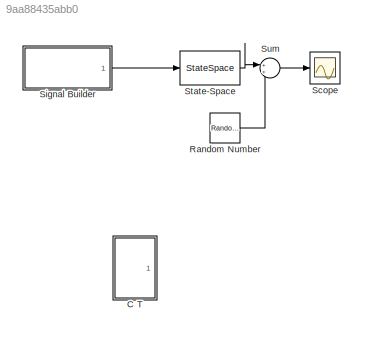
MODEL slx_9aa88435abb0
KIND model
CONFIG AbsTol = auto
CONFIG EnableMultiTasking = off
CONFIG FixedStep = auto
CONFIG MaxStep = auto
CONFIG MinStep = auto
CONFIG RelTol = 1e-3
CONFIG SampleTimeConstraint = Unconstrained
CONFIG Solver = VariableStepAuto
CONFIG SolverName = VariableStepAuto
CONFIG StartTime = 0.0
CONFIG StopTime = 10.0
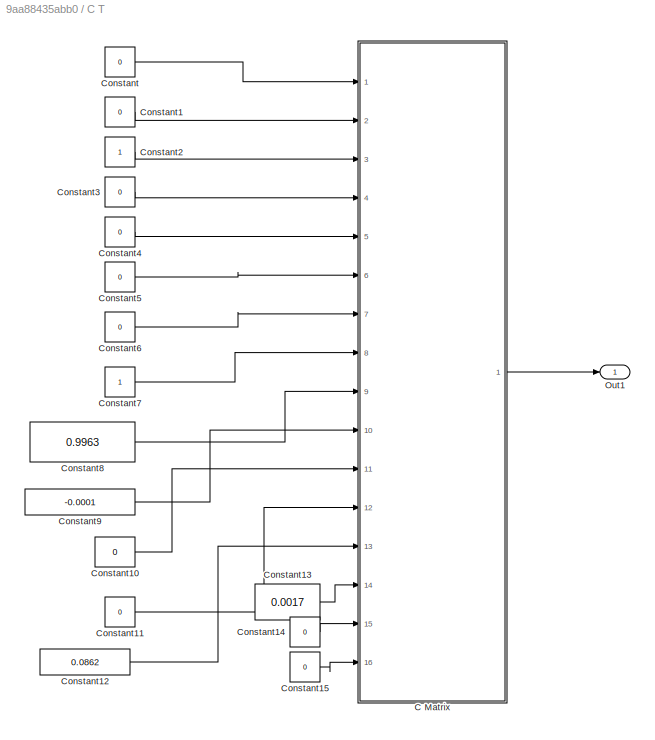
BLOCK [SubSystem] C T
  Ports = [0, 1]
  RequestExecContextInheritance = off
  Variant = off
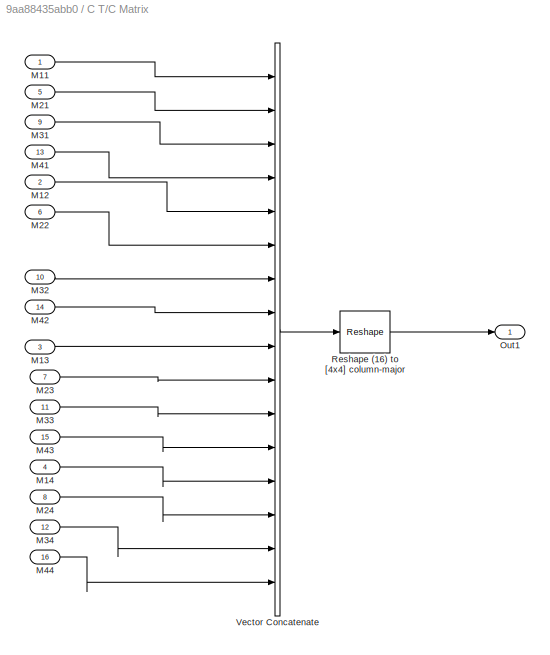
BLOCK [SubSystem] C T/C Matrix
  Ports = [16, 1]
  RequestExecContextInheritance = off
  Variant = off
BLOCK [Inport] C T/C Matrix/M11
  IconDisplay = Port number
  PortDimensions = 1
BLOCK [Inport] C T/C Matrix/M12
  IconDisplay = Port number
  Port = 2
  PortDimensions = 1
BLOCK [Inport] C T/C Matrix/M13
  IconDisplay = Port number
  Port = 3
  PortDimensions = 1
BLOCK [Inport] C T/C Matrix/M14
  IconDisplay = Port number
  Port = 4
  PortDimensions = 1
BLOCK [Inport] C T/C Matrix/M21
  IconDisplay = Port number
  Port = 5
  PortDimensions = 1
BLOCK [Inport] C T/C Matrix/M22
  IconDisplay = Port number
  Port = 6
  PortDimensions = 1
BLOCK [Inport] C T/C Matrix/M23
  IconDisplay = Port number
  Port = 7
  PortDimensions = 1
BLOCK [Inport] C T/C Matrix/M24
  IconDisplay = Port number
  Port = 8
  PortDimensions = 1
BLOCK [Inport] C T/C Matrix/M31
  IconDisplay = Port number
  Port = 9
  PortDimensions = 1
BLOCK [Inport] C T/C Matrix/M32
  IconDisplay = Port number
  Port = 10
  PortDimensions = 1
BLOCK [Inport] C T/C Matrix/M33
  IconDisplay = Port number
  Port = 11
  PortDimensions = 1
BLOCK [Inport] C T/C Matrix/M34
  IconDisplay = Port number
  Port = 12
  PortDimensions = 1
BLOCK [Inport] C T/C Matrix/M41
  IconDisplay = Port number
  Port = 13
  PortDimensions = 1
BLOCK [Inport] C T/C Matrix/M42
  IconDisplay = Port number
  Port = 14
  PortDimensions = 1
BLOCK [Inport] C T/C Matrix/M43
  IconDisplay = Port number
  Port = 15
  PortDimensions = 1
BLOCK [Inport] C T/C Matrix/M44
  IconDisplay = Port number
  Port = 16
  PortDimensions = 1
BLOCK [Outport] C T/C Matrix/Out1
  IconDisplay = Port number
BLOCK [Reshape] C T/C Matrix/Reshape (16) to [4x4] column-major
  OutputDimensionality = Customize
  OutputDimensions = [4,4]
  Ports = [1, 1]
BLOCK [Concatenate] C T/C Matrix/Vector Concatenate
  NumInputs = 16
  Ports = [16, 1]
BLOCK [Constant] C T/Constant
  Value = 0
BLOCK [Constant] C T/Constant1
  Value = 0
BLOCK [Constant] C T/Constant10
  Value = 0
BLOCK [Constant] C T/Constant11
  Value = 0
BLOCK [Constant] C T/Constant12
  Value = 0.0862
BLOCK [Constant] C T/Constant13
  Value = 0.0017
BLOCK [Constant] C T/Constant14
  Value = 0
BLOCK [Constant] C T/Constant15
  Value = 0
BLOCK [Constant] C T/Constant2
BLOCK [Constant] C T/Constant3
  Value = 0
BLOCK [Constant] C T/Constant4
  Value = 0
BLOCK [Constant] C T/Constant5
  Value = 0
BLOCK [Constant] C T/Constant6
  Value = 0
BLOCK [Constant] C T/Constant7
BLOCK [Constant] C T/Constant8
  Value = 0.9963
BLOCK [Constant] C T/Constant9
  Value = -0.0001
BLOCK [Outport] C T/Out1
  IconDisplay = Port number
BLOCK [RandomNumber] Random Number
  SampleTime = 0.01
  Variance = [0.0001, 0.0000001, 0.00002, 0.00002]
BLOCK [Scope] Scope
  NumInputPorts = 1
  Ports = [1]
  ScopeSpecificationString = Simulink.scopes.TimeScopeBlockCfg('CurrentConfiguration', extmgr.ConfigurationSet(extmgr.Configuration('Core','General UI',true),extmgr.Configuration('Core','Source UI',true),extmgr.Configuration('Sources','WiredSimulink',true),extmgr.Configuration('Visuals','Time Domain',true,'SerializedDisplays',{struct('MinYLimReal','-0.10472','MaxYLimReal','0.38544','YLabelReal','','MinYLimMag','0.00000','MaxY...<+1506ch>
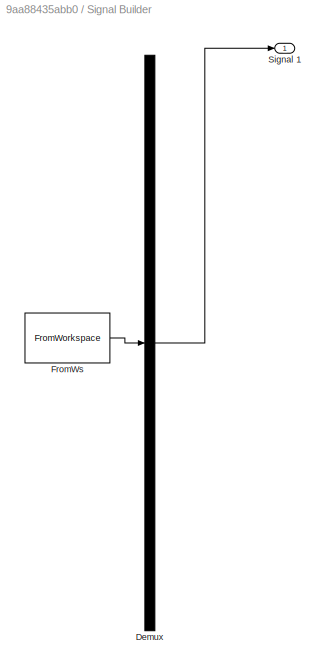
BLOCK [SubSystem] Signal Builder
  ClipboardFcn = sigbuilder_block('clipboard');
  CloseFcn = sigbuilder_block('close');
  ContinueFcn = sigbuilder_block('continue');
  CopyFcn = sigbuilder_block('copy');
  DeleteFcn = sigbuilder_block('delete');
  LoadFcn = sigbuilder_block('load');
  MaskHideContents = on
  ModelCloseFcn = sigbuilder_block('modelClose');
  NameChangeFcn = sigbuilder_block('namechange');
  OpenFcn = sigbuilder_block('open',[300 184.875 550.5 400.125 ]);
  PauseFcn = sigbuilder_block('pause');
  Ports = [0, 1]
  PreSaveFcn = sigbuilder_block('preSave');
  RequestExecContextInheritance = off
  StartFcn = sigbuilder_block('start');
  StopFcn = sigbuilder_block('stop');
  Tag = STV Subsys
  Variant = off
BLOCK [Demux] Signal Builder/Demux
  Outputs = 1
  Ports = [1, 1]
  Tag = STV Demux
BLOCK [FromWorkspace] Signal Builder/FromWs
  SampleTime = 0
  Tag = STV FromWs
  VariableName = tuvar
  ZeroCross = on
BLOCK [Outport] Signal Builder/Signal 1
  IconDisplay = Port number
  Tag = STV Outport
BLOCK [StateSpace] State-Space
  A = [0 1.0000 0 0;\n0 -0.9965 0 -0.3000;\n-0.3197 -0.5176 -0.0100 -0.7000;\n0 0 -0.0005 -0.9924];
  B = [ 0;\n-0.0013;\n0.0001;\n-0.0201];
  C = [0 0 0.9963 0.0862;\n0 0 -0.0001 0.0017;\n1.0000 0 0 0;\n0 1.0000 0 0];
  D = [0;0;0;0];
  Ports = [1, 1]
  X0 = 0
BLOCK [Sum] Sum
  IconShape = round
  InputSameDT = off
  Inputs = 2
  OutDataTypeStr = Inherit: Inherit via internal rule
  Ports = [2, 1]
  SaturateOnIntegerOverflow = off
LINE C T/C Matrix/M11:1 -> C T/C Matrix/Vector Concatenate:1
LINE C T/C Matrix/M12:1 -> C T/C Matrix/Vector Concatenate:5
LINE C T/C Matrix/M13:1 -> C T/C Matrix/Vector Concatenate:9
LINE C T/C Matrix/M14:1 -> C T/C Matrix/Vector Concatenate:13
LINE C T/C Matrix/M21:1 -> C T/C Matrix/Vector Concatenate:2
LINE C T/C Matrix/M22:1 -> C T/C Matrix/Vector Concatenate:6
LINE C T/C Matrix/M23:1 -> C T/C Matrix/Vector Concatenate:10
LINE C T/C Matrix/M24:1 -> C T/C Matrix/Vector Concatenate:14
LINE C T/C Matrix/M31:1 -> C T/C Matrix/Vector Concatenate:3
LINE C T/C Matrix/M32:1 -> C T/C Matrix/Vector Concatenate:7
LINE C T/C Matrix/M33:1 -> C T/C Matrix/Vector Concatenate:11
LINE C T/C Matrix/M34:1 -> C T/C Matrix/Vector Concatenate:15
LINE C T/C Matrix/M41:1 -> C T/C Matrix/Vector Concatenate:4
LINE C T/C Matrix/M42:1 -> C T/C Matrix/Vector Concatenate:8
LINE C T/C Matrix/M43:1 -> C T/C Matrix/Vector Concatenate:12
LINE C T/C Matrix/M44:1 -> C T/C Matrix/Vector Concatenate:16
LINE C T/C Matrix/Reshape (16) to [4x4] column-major:1 -> C T/C Matrix/Out1:1
LINE C T/C Matrix/Vector Concatenate:1 -> C T/C Matrix/Reshape (16) to [4x4] column-major:1
LINE C T/C Matrix:1 -> C T/Out1:1
LINE C T/Constant10:1 -> C T/C Matrix:11
LINE C T/Constant11:1 -> C T/C Matrix:12
LINE C T/Constant12:1 -> C T/C Matrix:13
LINE C T/Constant13:1 -> C T/C Matrix:14
LINE C T/Constant14:1 -> C T/C Matrix:15
LINE C T/Constant15:1 -> C T/C Matrix:16
LINE C T/Constant1:1 -> C T/C Matrix:2
LINE C T/Constant2:1 -> C T/C Matrix:3
LINE C T/Constant3:1 -> C T/C Matrix:4
LINE C T/Constant4:1 -> C T/C Matrix:5
LINE C T/Constant5:1 -> C T/C Matrix:6
LINE C T/Constant6:1 -> C T/C Matrix:7
LINE C T/Constant7:1 -> C T/C Matrix:8
LINE C T/Constant8:1 -> C T/C Matrix:9
LINE C T/Constant9:1 -> C T/C Matrix:10
LINE C T/Constant:1 -> C T/C Matrix:1
LINE Random Number:1 -> Sum:2
LINE Signal Builder:1 -> State-Space:1
LINE State-Space:1 -> Sum:1
LINE Sum:1 -> Scope:1
